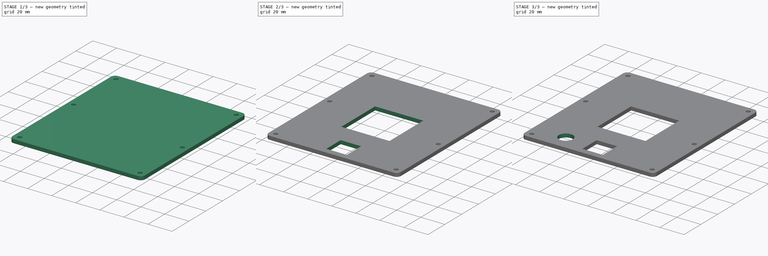
[diagram: build sequence overview — one tinted view per stage of 3, left to right]
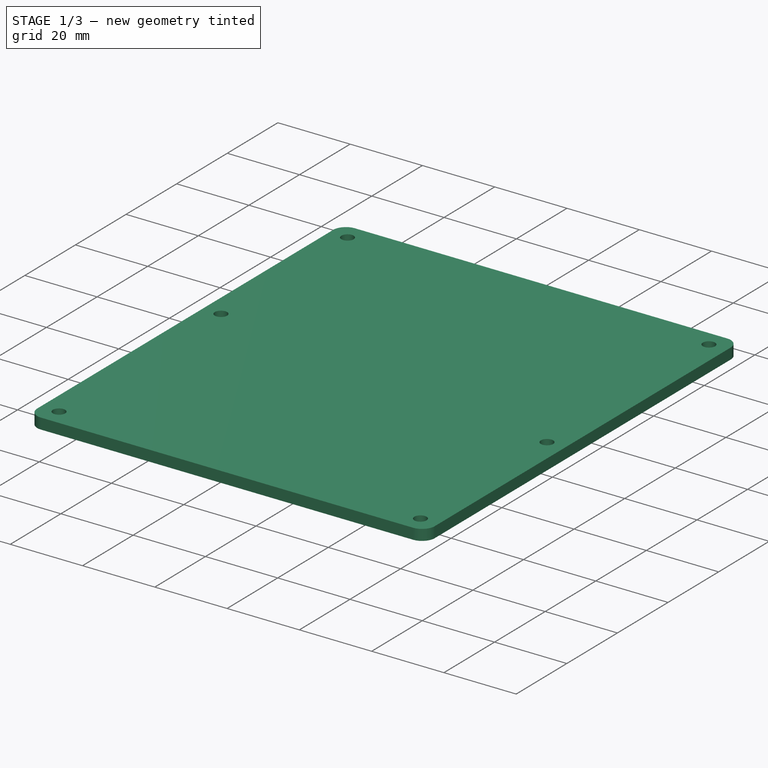
[diagram: stage 1 of 3 — iso view after this stage's code; geometry added in this stage tinted green]
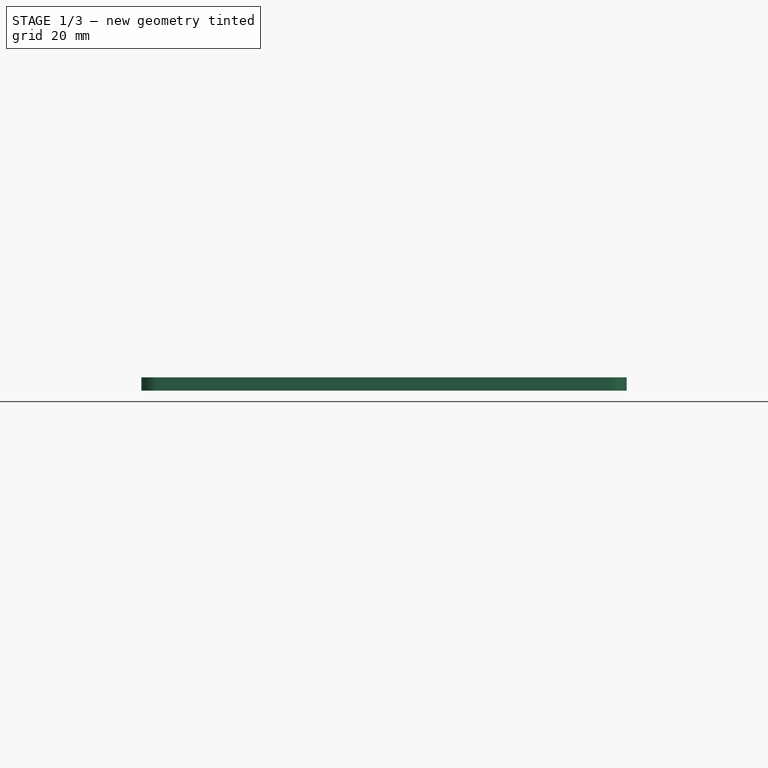
[diagram: stage 1 of 3 — front view after this stage's code; geometry added in this stage tinted green]
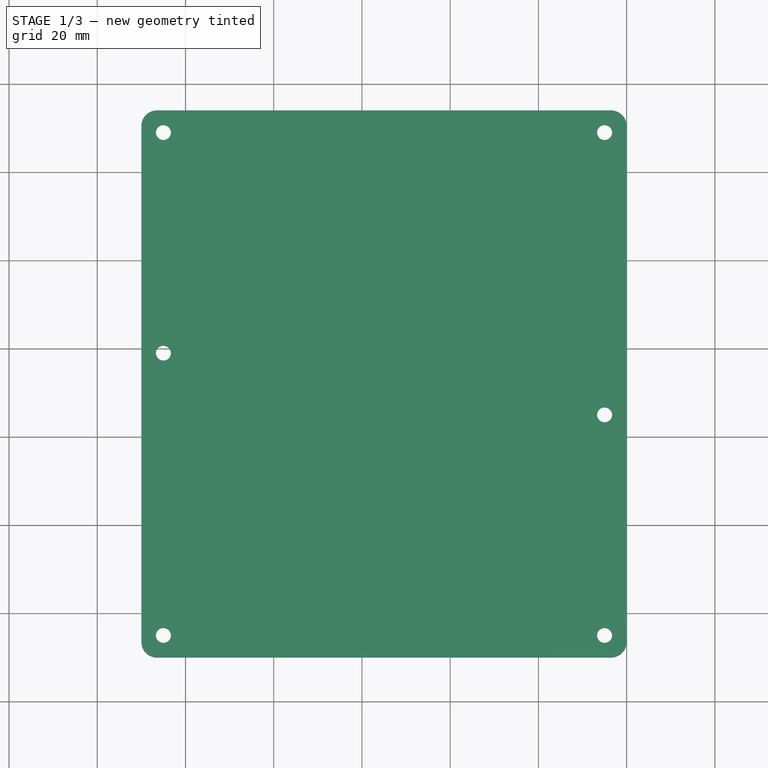
[diagram: stage 1 of 3 — top view after this stage's code; geometry added in this stage tinted green]
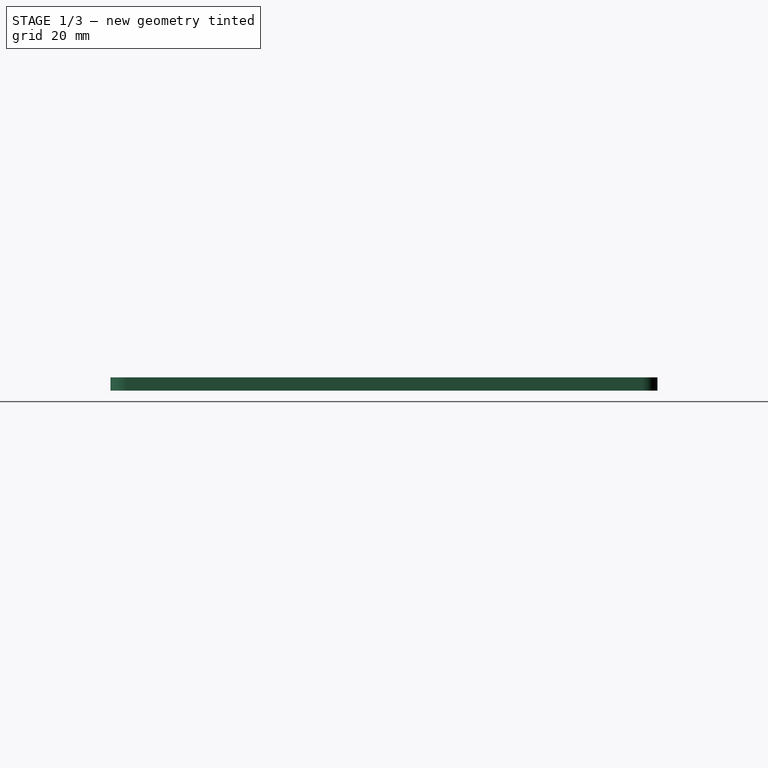
[diagram: stage 1 of 3 — right view after this stage's code; geometry added in this stage tinted green]
FCSTD DOCUMENT  (FreeCAD 1.0R39285 (Git))
Label: rr_roof
License: All rights reserved
LicenseURL: http://en.wikipedia.org/wiki/All_rights_reserved
objects: Sketcher::SketchObject×6, PartDesign::Pad×2, PartDesign::Hole×2, PartDesign::Pocket×2, Spreadsheet::Sheet×1, PartDesign::Body×1
note: 31 computed .brp shape members not serialized (recipe doc carries the construction recipe); baked Part::Feature solids carry a one-line shape summary decoded from their .brp

FEATURE [Sketcher::SketchObject] Sketch  label="base"
  ArcFitTolerance = 1e-06
  AttachmentSupport = -> [XY_Plane]
  FullyConstrained = true
  MakeInternals = false
  MapMode = 5
  expr: Constraints[26] = Spreadsheet.offset_x
  expr: Constraints[27] = Spreadsheet.offset_y
  sketch-geometry (12):
    g0: LineSegment StartX=10 StartY=130.464 StartZ=0 EndX=10 EndY=13.5355 EndZ=0
    g1: LineSegment StartX=13.5355 StartY=10 StartZ=0 EndX=116.464 EndY=10 EndZ=0
    g2: LineSegment StartX=120 StartY=13.5355 StartZ=0 EndX=120 EndY=130.464 EndZ=0
    g3: LineSegment StartX=116.464 StartY=134 StartZ=0 EndX=13.5355 EndY=134 EndZ=0
    g4: ArcOfCircle CenterX=13.5355 CenterY=13.5355 CenterZ=0 NormalX=0 NormalY=0 NormalZ=1 AngleXU=0 Radius=3.53553 StartAngle=3.14159 EndAngle=4.71239
    g5: GeomPoint [constr] X=10 Y=10 Z=0
    g6: ArcOfCircle CenterX=116.464 CenterY=13.5355 CenterZ=0 NormalX=0 NormalY=0 NormalZ=1 AngleXU=0 Radius=3.53553 StartAngle=4.71239 EndAngle=6.28319
    g7: GeomPoint [constr] X=120 Y=10 Z=0
    g8: ArcOfCircle CenterX=116.464 CenterY=130.464 CenterZ=0 NormalX=0 NormalY=0 NormalZ=1 AngleXU=0 Radius=3.53553 StartAngle=2.7e-15 EndAngle=1.5708
    g9: GeomPoint [constr] X=120 Y=134 Z=0
    g10: ArcOfCircle CenterX=13.5355 CenterY=130.464 CenterZ=0 NormalX=0 NormalY=0 NormalZ=1 AngleXU=0 Radius=3.53553 StartAngle=1.5708 EndAngle=3.14159
    g11: GeomPoint [constr] X=10 Y=134 Z=0
  constraints (28):
    c: Vertical(g0)
    c: Vertical(g2)
    c: Horizontal(g1)
    c: Horizontal(g3)
    c: PointOnObject(g5,g0)
    c: PointOnObject(g5,g1)
    c: Tangent(g0,g4) = -1.5708
    c: Tangent(g1,g4) = -1.5708
    c: PointOnObject(g7,g1)
    c: PointOnObject(g7,g2)
    c: Tangent(g1,g6) = -1.5708
    c: Tangent(g2,g6) = -1.5708
    c: PointOnObject(g9,g2)
    c: PointOnObject(g9,g3)
    c: Tangent(g2,g8) = -1.5708
    c: Tangent(g3,g8) = -1.5708
    c: PointOnObject(g11,g3)
    c: PointOnObject(g11,g0)
    c: Tangent(g3,g10) = -1.5708
    c: Tangent(g0,g10) = -1.5708
    c: Distance(g0,g3) = 5
    c: Equal(g10,g8)
    c: Equal(g8,g6)
    c: Equal(g6,g4)
    c: DistanceY(g1,g3) = 124
    c: DistanceX(g0,g2) = 110
    c: DistanceX(g-1,g0) = 10
    c: DistanceY(g-1,g5) = 10
FEATURE [Spreadsheet::Sheet] Spreadsheet
  cells = A1='offset_x; B1(offset_x)=10; A2='offset_y; B2(offset_y)=10
FEATURE [Sketcher::SketchObject] Sketch001  label="mount_holes"
  ArcFitTolerance = 1e-06
  AttachmentSupport = -> [XY_Plane]
  FullyConstrained = true
  MakeInternals = false
  MapMode = 5
  expr: Constraints[14] = Spreadsheet.offset_y + 5
  expr: Constraints[15] = Spreadsheet.offset_x + 5
  sketch-geometry (6):
    g0: Circle CenterX=15 CenterY=129 CenterZ=0 NormalX=0 NormalY=0 NormalZ=1 AngleXU=0 Radius=1.5
    g1: Circle CenterX=15 CenterY=79 CenterZ=0 NormalX=0 NormalY=0 NormalZ=1 AngleXU=0 Radius=1.5
    g2: Circle CenterX=15 CenterY=15 CenterZ=0 NormalX=0 NormalY=0 NormalZ=1 AngleXU=0 Radius=1.5
    g3: Circle CenterX=115 CenterY=15 CenterZ=0 NormalX=0 NormalY=0 NormalZ=1 AngleXU=0 Radius=1.5
    g4: Circle CenterX=115 CenterY=65 CenterZ=0 NormalX=0 NormalY=0 NormalZ=1 AngleXU=0 Radius=1.5
    g5: Circle CenterX=115 CenterY=129 CenterZ=0 NormalX=0 NormalY=0 NormalZ=1 AngleXU=0 Radius=1.5
  constraints (18):
    c: Diameter(g0) = 3
    c: Equal(g0,g1)
    c: Equal(g1,g2)
    c: Equal(g2,g3)
    c: Equal(g3,g4)
    c: Equal(g4,g5)
    c: Vertical(g0,g1)
    c: Vertical(g1,g2)
    c: Horizontal(g0,g5)
    c: Horizontal(g2,g3)
    c: Vertical(g3,g4)
    c: Vertical(g4,g5)
    c: DistanceX(g0,g5) = 100
    c: DistanceY(g2,g0) = 114
    c: DistanceY(g-1,g2) = 15
    c: DistanceX(g-1,g2) = 15
    c: DistanceY(g3,g4) = 50
    c: DistanceY(g1,g0) = 50
FEATURE [Sketcher::SketchObject] Sketch002  label="cut_away"
  ArcFitTolerance = 1e-06
  AttachmentSupport = -> [XY_Plane]
  FullyConstrained = true
  MakeInternals = false
  MapMode = 5
  expr: Constraints[10] = Spreadsheet.offset_x + 35
  sketch-geometry (8):
    g0: LineSegment StartX=45 StartY=90 StartZ=0 EndX=45 EndY=50 EndZ=0
    g1: LineSegment StartX=45 StartY=50 StartZ=0 EndX=85 EndY=50 EndZ=0
    g2: LineSegment StartX=85 StartY=50 StartZ=0 EndX=85 EndY=90 EndZ=0
    g3: LineSegment StartX=85 StartY=90 StartZ=0 EndX=45 EndY=90 EndZ=0
    g4: LineSegment StartX=57 StartY=32 StartZ=0 EndX=57 EndY=15 EndZ=0
    g5: LineSegment StartX=57 StartY=15 StartZ=0 EndX=74 EndY=15 EndZ=0
    g6: LineSegment StartX=74 StartY=15 StartZ=0 EndX=74 EndY=32 EndZ=0
    g7: LineSegment StartX=74 StartY=32 StartZ=0 EndX=57 EndY=32 EndZ=0
  constraints (24):
    c: Coincident(g0,g1)
    c: Coincident(g1,g2)
    c: Coincident(g2,g3)
    c: Coincident(g3,g0)
    c: Vertical(g0)
    c: Vertical(g2)
    c: Horizontal(g1)
    c: Horizontal(g3)
    c: DistanceY(g1,g2) = 40
    c: DistanceX(g0,g1) = 40
    c: DistanceX(g-1,g0) = 45
    c: DistanceY(g-1,g0) = 50
    c: Coincident(g4,g5)
    c: Coincident(g5,g6)
    c: Coincident(g6,g7)
    c: Coincident(g7,g4)
    c: Vertical(g4)
    c: Vertical(g6)
    c: Horizontal(g5)
    c: Horizontal(g7)
    c: DistanceX(g4,g5) = 17
    c: DistanceY(g5,g6) = 17
    c: DistanceX(g-1,g4) = 57
    c: DistanceY(g-1,g4) = 15
FEATURE [PartDesign::Pad] Pad
  Direction = (0,0,1)
  Length = 3
  Length2 = 10
  Profile = -> Sketch
  ReferenceAxis = -> Sketch [N_Axis]
  Suppressed = false
  Type = 0
FEATURE [PartDesign::Hole] Hole
  BaseFeature = -> Pad
  CustomThreadClearance = 0
  Depth = 334.888
  DepthType = 1
  Diameter = 3.4
  DrillForDepth = false
  DrillPoint = 1
  DrillPointAngle = 118
  HoleCutCountersinkAngle = 90
  HoleCutCustomValues = false
  HoleCutDepth = 0
  HoleCutDiameter = 6.1
  HoleCutType = 0
  ModelThread = false
  Profile = -> Sketch001
  Reversed = true
  Suppressed = false
  Tapered = false
  TaperedAngle = 90
  ThreadClass = 0
  ThreadDepth = 334.888
  ThreadDepthType = 0
  ThreadDirection = 0
  ThreadFit = 0
  ThreadSize = 9
  ThreadType = 1
  Threaded = false
  UseCustomThreadClearance = false
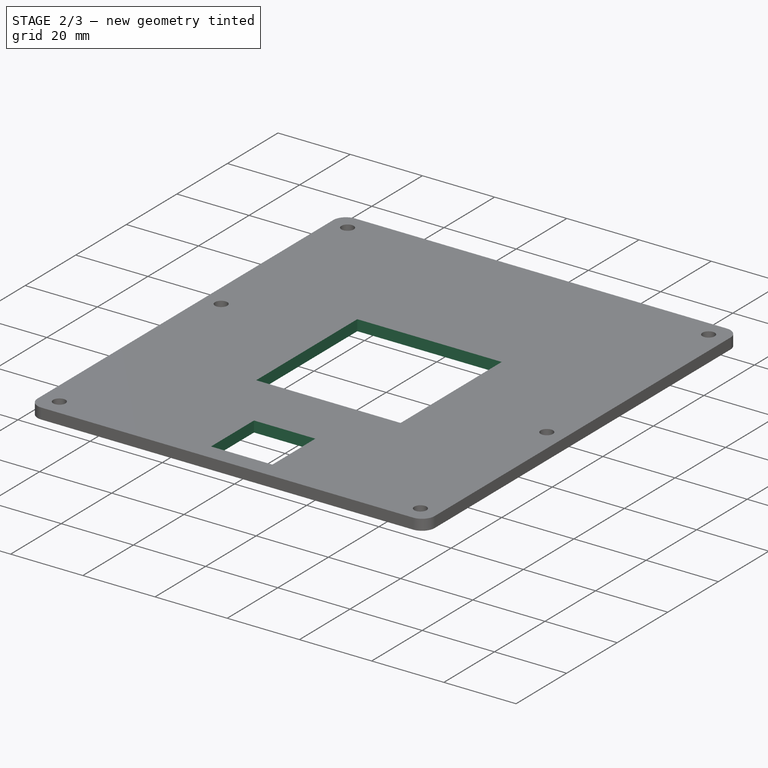
[diagram: stage 2 of 3 — iso view after this stage's code; geometry added in this stage tinted green]
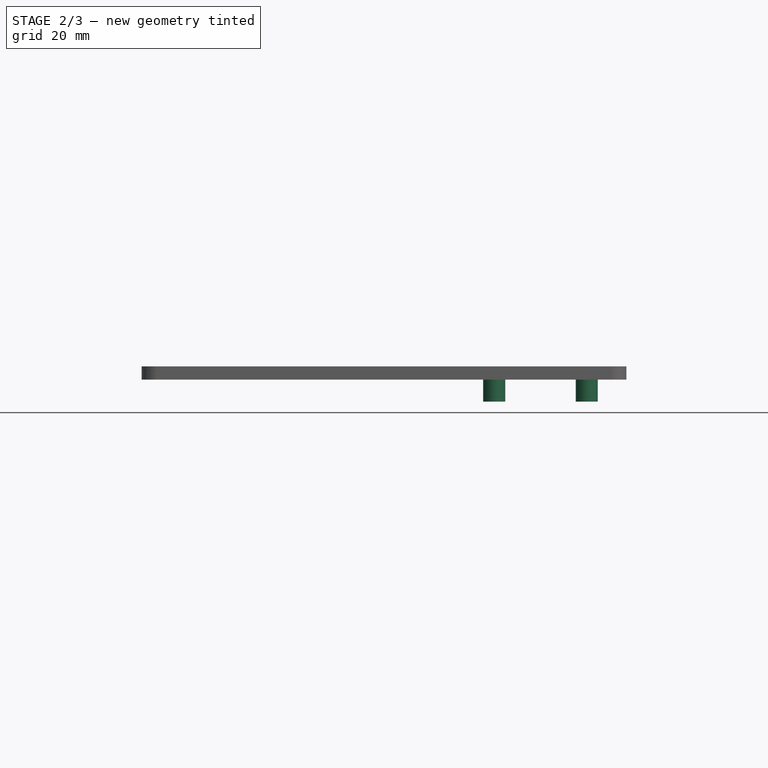
[diagram: stage 2 of 3 — front view after this stage's code; geometry added in this stage tinted green]
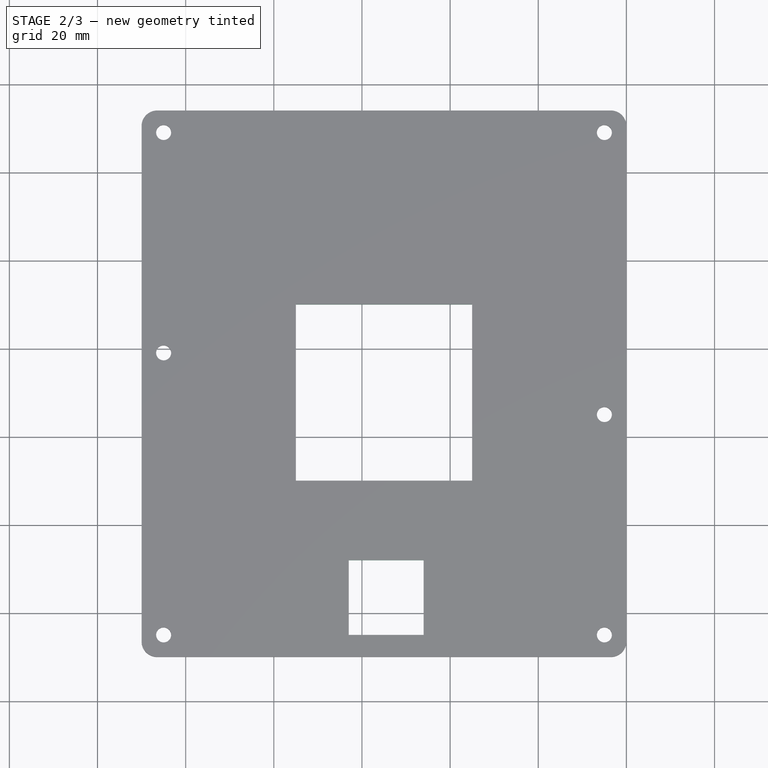
[diagram: stage 2 of 3 — top view after this stage's code; geometry added in this stage tinted green]
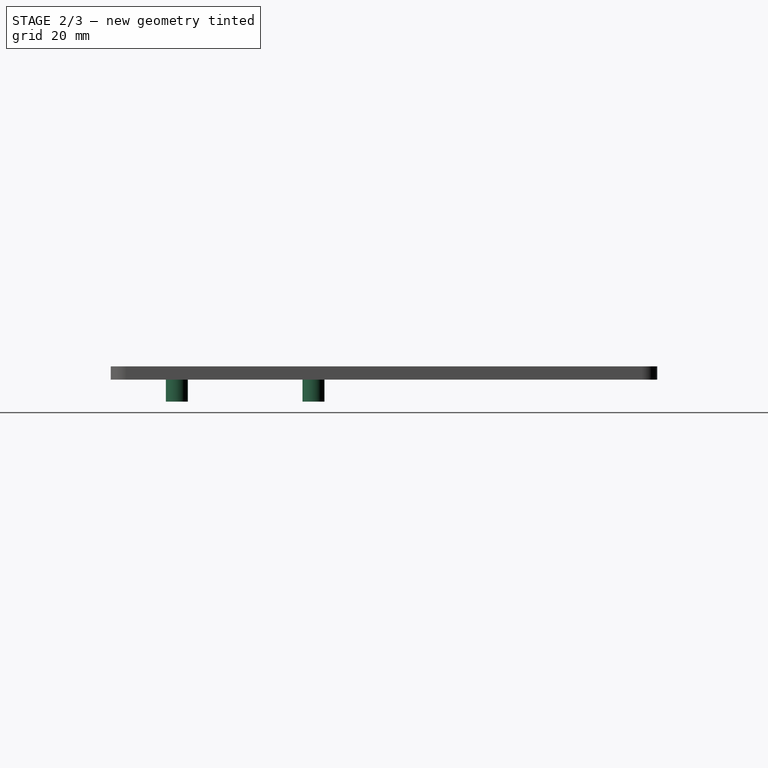
[diagram: stage 2 of 3 — right view after this stage's code; geometry added in this stage tinted green]
FEATURE [PartDesign::Pocket] Pocket
  BaseFeature = -> Hole
  Direction = (0,0,-1)
  Length = 5
  Length2 = 5
  Profile = -> Sketch002
  ReferenceAxis = -> Sketch002 [N_Axis]
  Reversed = true
  Suppressed = false
  Type = 1
FEATURE [Sketcher::SketchObject] Sketch003
  ArcFitTolerance = 1e-06
  AttachmentSupport = -> [XY_Plane]
  FullyConstrained = true
  MakeInternals = false
  MapMode = 5
  sketch-geometry (1):
    g0: Circle CenterX=37 CenterY=24 CenterZ=0 NormalX=0 NormalY=0 NormalZ=1 AngleXU=0 Radius=5.85
  constraints (3):
    c: Diameter(g0) = 11.7
    c: DistanceX(g-1,g0) = 37
    c: DistanceY(g-1,g0) = 24
FEATURE [Sketcher::SketchObject] Sketch004
  ArcFitTolerance = 1e-06
  AttachmentSupport = -> [XY_Plane]
  FullyConstrained = true
  MakeInternals = false
  MapMode = 5
  sketch-geometry (4):
    g0: Circle CenterX=90 CenterY=56 CenterZ=0 NormalX=0 NormalY=0 NormalZ=1 AngleXU=0 Radius=1.5
    g1: Circle CenterX=111 CenterY=56 CenterZ=0 NormalX=0 NormalY=0 NormalZ=1 AngleXU=0 Radius=1.5
    g2: Circle CenterX=90 CenterY=25 CenterZ=0 NormalX=0 NormalY=0 NormalZ=1 AngleXU=0 Radius=1.5
    g3: Circle CenterX=111 CenterY=25 CenterZ=0 NormalX=0 NormalY=0 NormalZ=1 AngleXU=0 Radius=1.5
  constraints (12):
    c: Diameter(g0) = 3
    c: Equal(g0,g1)
    c: Equal(g1,g3)
    c: Equal(g3,g2)
    c: Vertical(g0,g2)
    c: Horizontal(g1,g0)
    c: Vertical(g1,g3)
    c: DistanceX(g2,g3) = 21
    c: DistanceY(g3,g1) = 31
    c: Horizontal(g3,g2)
    c: DistanceY(g-1,g2) = 25
    c: DistanceX(g-1,g2) = 90
FEATURE [Sketcher::SketchObject] Sketch005
  ArcFitTolerance = 1e-06
  AttachmentSupport = -> [XY_Plane]
  FullyConstrained = true
  MakeInternals = false
  MapMode = 5
  sketch-geometry (4):
    g0: Circle CenterX=90 CenterY=56 CenterZ=0 NormalX=0 NormalY=0 NormalZ=1 AngleXU=0 Radius=2.5
    g1: Circle CenterX=111 CenterY=56 CenterZ=0 NormalX=0 NormalY=0 NormalZ=1 AngleXU=0 Radius=2.5
    g2: Circle CenterX=90 CenterY=25 CenterZ=0 NormalX=0 NormalY=0 NormalZ=1 AngleXU=0 Radius=2.5
    g3: Circle CenterX=111 CenterY=25 CenterZ=0 NormalX=0 NormalY=0 NormalZ=1 AngleXU=0 Radius=2.5
  constraints (12):
    c: Diameter(g3) = 5
    c: Equal(g3,g1)
    c: Equal(g1,g0)
    c: Equal(g0,g2)
    c: Horizontal(g2,g3)
    c: Vertical(g3,g1)
    c: Vertical(g2,g0)
    c: DistanceX(g2,g3) = 21
    c: DistanceY(g3,g1) = 31
    c: DistanceX(g-1,g2) = 90
    c: DistanceY(g-1,g2) = 25
    c: Horizontal(g0,g1)
FEATURE [PartDesign::Pad] Pad001
  BaseFeature = -> Pocket
  Direction = (0,0,1)
  Length = 5
  Length2 = 10
  Profile = -> Sketch005
  ReferenceAxis = -> Sketch005 [N_Axis]
  Reversed = true
  Suppressed = false
  Type = 0
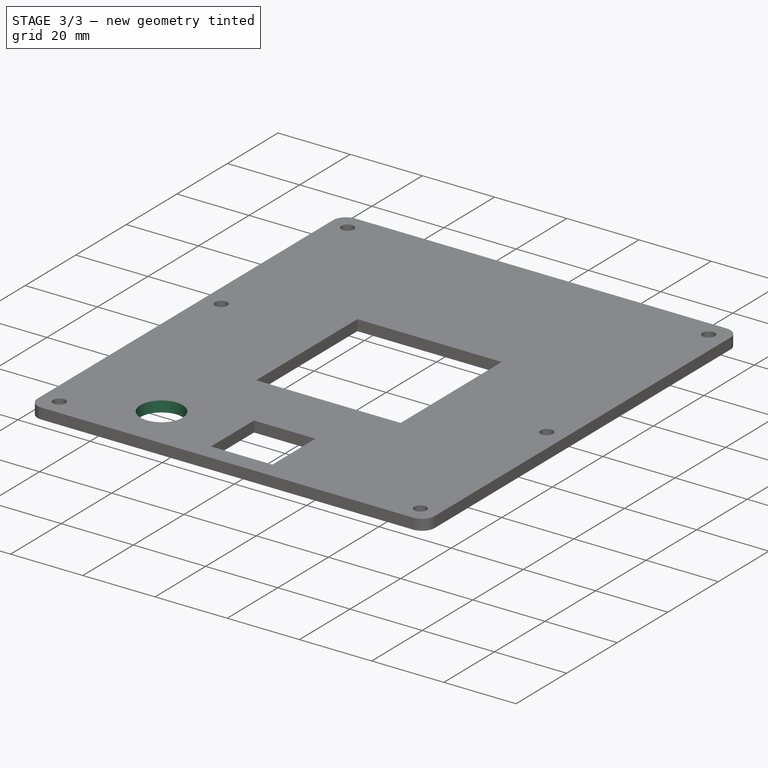
[diagram: stage 3 of 3 — iso view after this stage's code; geometry added in this stage tinted green]
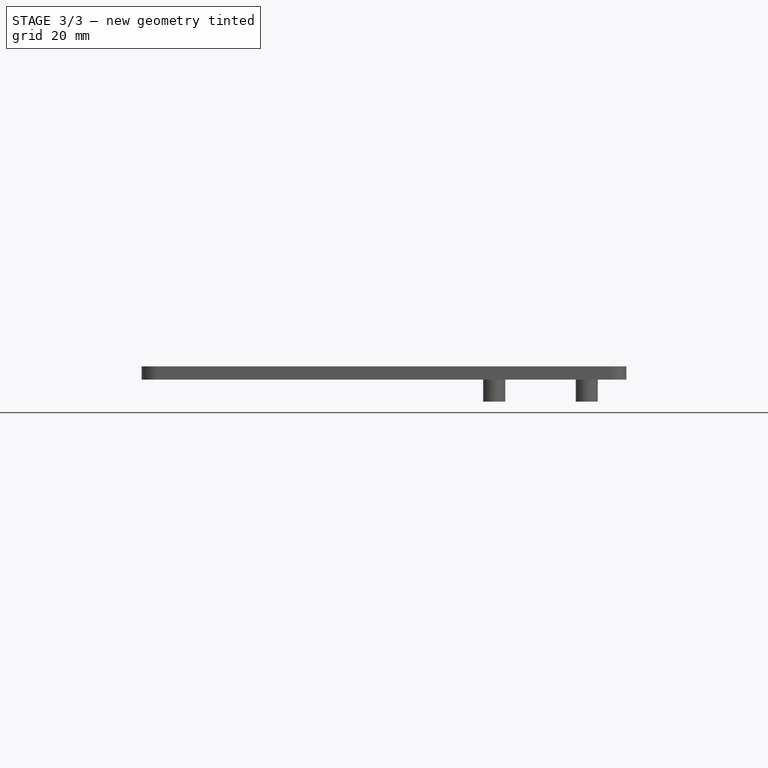
[diagram: stage 3 of 3 — front view after this stage's code; geometry added in this stage tinted green]
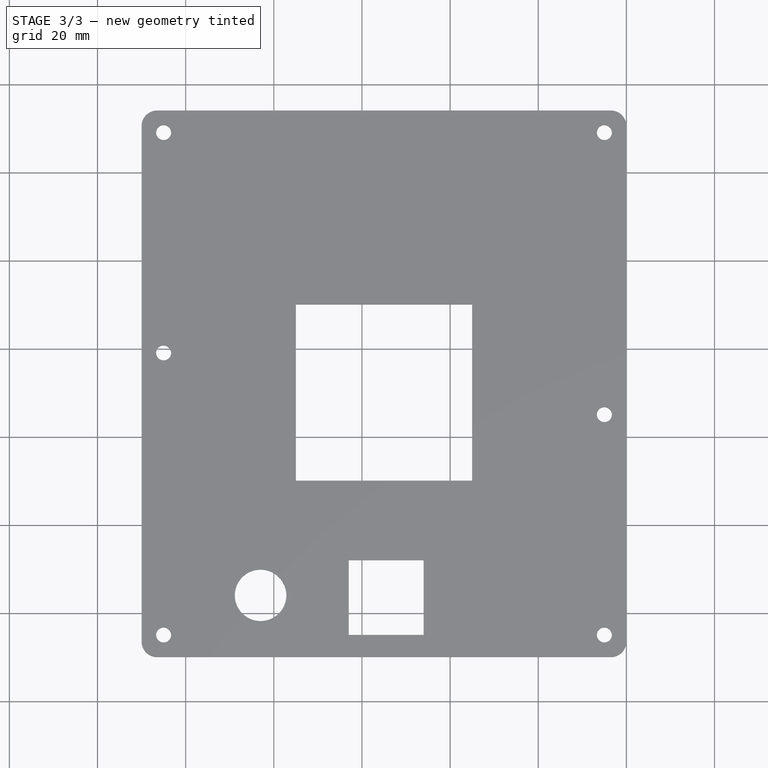
[diagram: stage 3 of 3 — top view after this stage's code; geometry added in this stage tinted green]
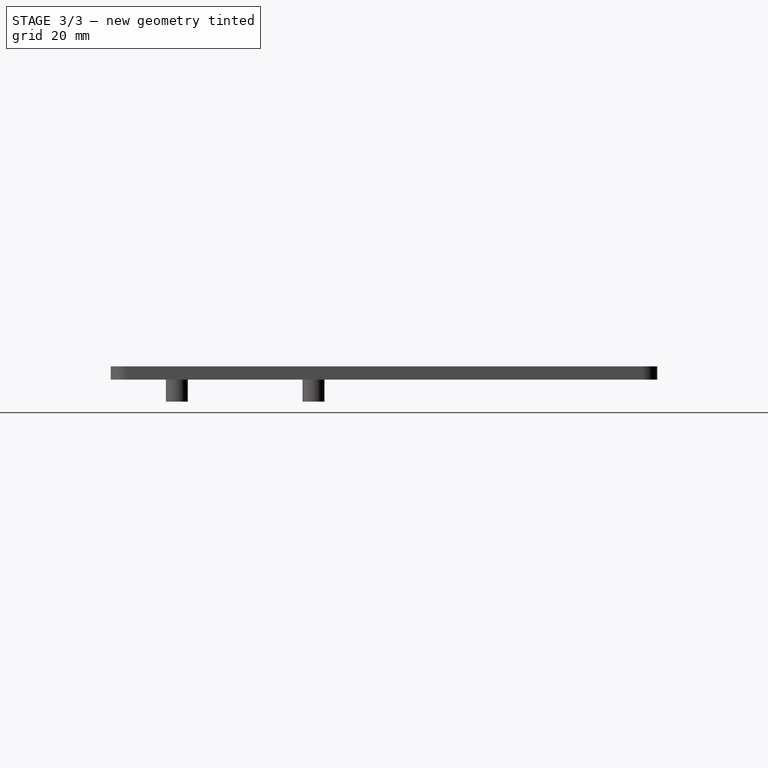
[diagram: stage 3 of 3 — right view after this stage's code; geometry added in this stage tinted green]
FEATURE [PartDesign::Hole] Hole001
  BaseFeature = -> Pad001
  CustomThreadClearance = 0
  Depth = 25
  DepthType = 0
  Diameter = 3.4
  DrillForDepth = false
  DrillPoint = 1
  DrillPointAngle = 118
  HoleCutCountersinkAngle = 90
  HoleCutCustomValues = false
  HoleCutDepth = 0
  HoleCutDiameter = 6.1
  HoleCutType = 0
  ModelThread = false
  Profile = -> Sketch004
  Suppressed = false
  Tapered = false
  TaperedAngle = 90
  ThreadClass = 0
  ThreadDepth = 25
  ThreadDepthType = 0
  ThreadDirection = 0
  ThreadFit = 0
  ThreadSize = 9
  ThreadType = 1
  Threaded = false
  UseCustomThreadClearance = false
FEATURE [PartDesign::Pocket] Pocket001
  BaseFeature = -> Hole001
  Direction = (0,0,-1)
  Length = 5
  Length2 = 5
  Profile = -> Sketch003
  ReferenceAxis = -> Sketch003 [N_Axis]
  Reversed = true
  Suppressed = false
  Type = 0
FEATURE [PartDesign::Body] Body
  AllowCompound = false
  Group = -> [Sketch,Sketch001,Sketch002,Pad,Hole,Pocket,Sketch003,Sketch004,Sketch005,Pad001,Hole001,Pocket001]
  Origin = -> Origin
  Tip = -> Pocket001
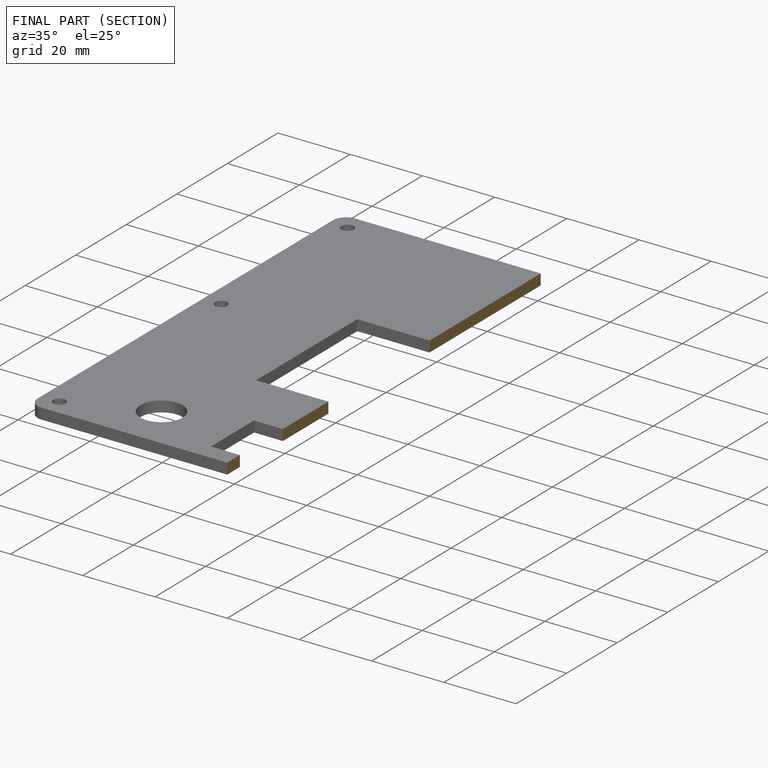
[diagram: finished part — half-section view (interior)]
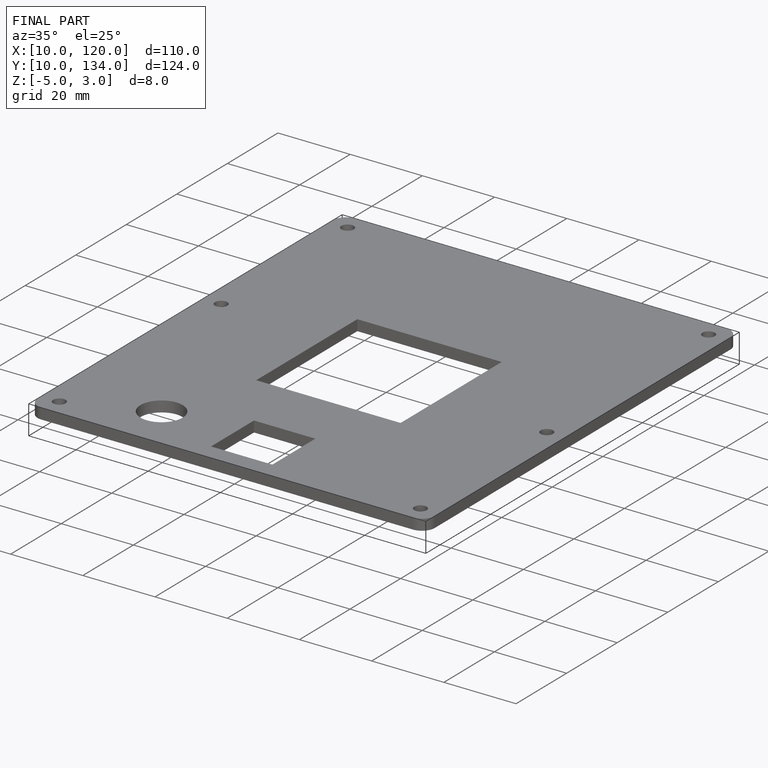
[diagram: finished part — iso view with bounding-box wireframe]
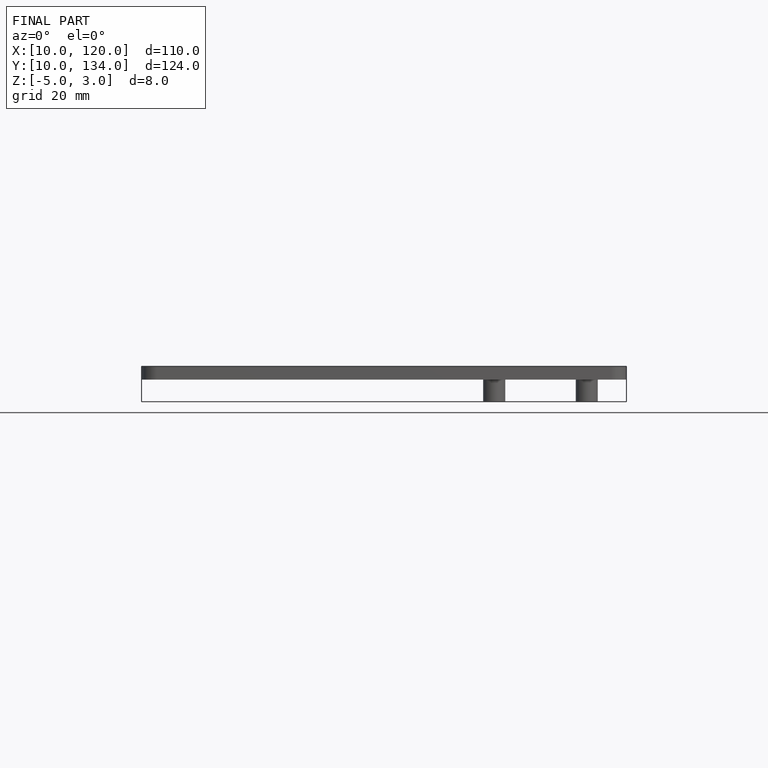
[diagram: finished part — front view with bounding-box wireframe]
